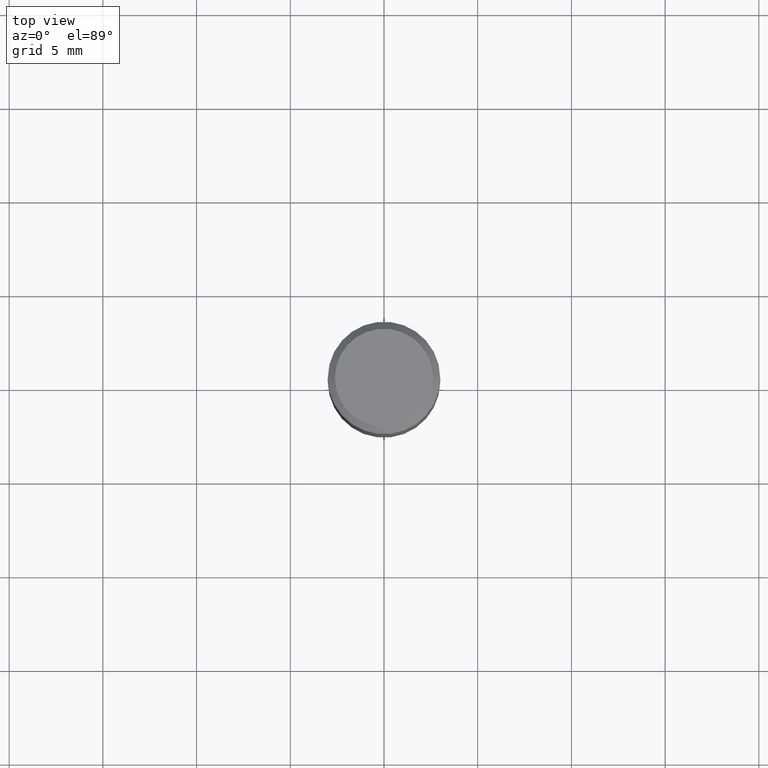
[diagram: clean part render]
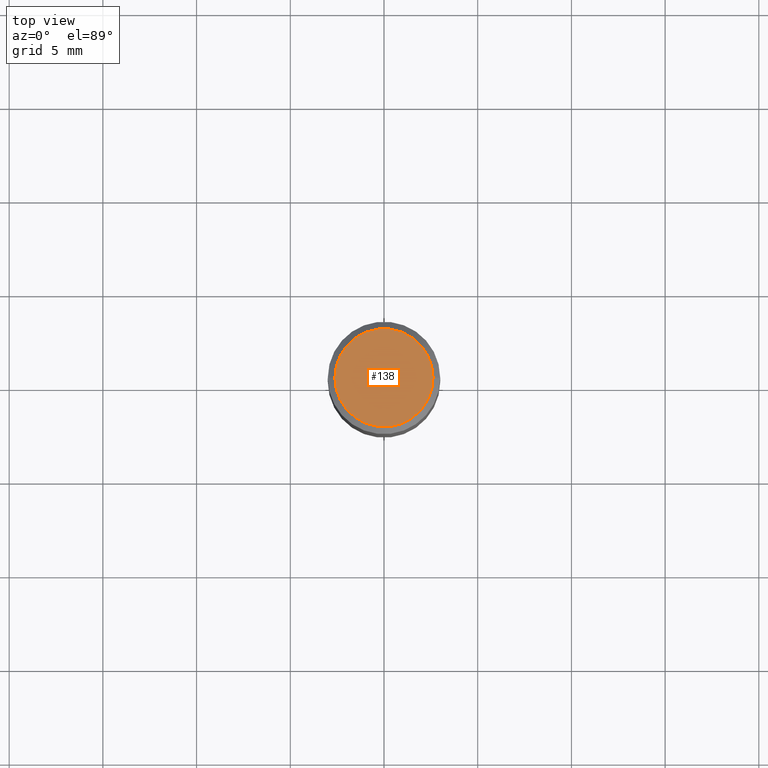
[diagram: same view with one face highlighted and labeled with its STEP entity id]
A machine part, top view. The second image highlights one B-rep face of the part: STEP entity #138.
In plain terms, the highlighted planar face has unit normal (0, -0, -1).
Its self-contained STEP definition (entity closure, byte-faithful):
#24 = DIRECTION ( 'NONE',  ( -2.445468806185136597E-29, 3.491481338843145583E-15, 1.000000000000000000 ) ) ;
#59 = DIRECTION ( 'NONE',  ( 1.000000000000000000, -6.982962677686265922E-15, 4.883331232093008327E-29 ) ) ;
#65 = DIRECTION ( 'NONE',  ( 2.438088387897960049E-29, -3.491481338843145188E-15, -1.000000000000000000 ) ) ;
#69 = ORIENTED_EDGE ( 'NONE', *, *, #222, .T. ) ;
#86 = CIRCLE ( 'NONE', #340, 0.1031000000000000111 ) ;
#99 = CIRCLE ( 'NONE', #129, 0.1031000000000000111 ) ;
#100 = PLANE ( 'NONE',  #233 ) ;
#101 = VERTEX_POINT ( 'NONE', #214 ) ;
#129 = AXIS2_PLACEMENT_3D ( 'NONE', #130, #352, #434 ) ;
#130 = CARTESIAN_POINT ( 'NONE',  ( -3.565051472193348194E-45, 5.089948665751259239E-31, 1.457819238248526181E-16 ) ) ;
#138 = ADVANCED_FACE ( 'NONE', ( #421 ), #100, .F. ) ;
#197 = CARTESIAN_POINT ( 'NONE',  ( -3.565051472193348194E-45, 5.089948665751259239E-31, 1.457819238248526181E-16 ) ) ;
#207 = DIRECTION ( 'NONE',  ( -1.000000000000000000, 6.982962677686265922E-15, -4.876176775795935793E-29 ) ) ;
#214 = CARTESIAN_POINT ( 'NONE',  ( -0.1031000000000000111, 7.461295621107778410E-16, 1.457819238248475152E-16 ) ) ;
#222 = EDGE_CURVE ( 'NONE', #101, #457, #86, .T. ) ;
#233 = AXIS2_PLACEMENT_3D ( 'NONE', #243, #65, #207 ) ;
#243 = CARTESIAN_POINT ( 'NONE',  ( 7.199434520694541042E-16, 0.1031000000000000111, -2.870807641223019510E-16 ) ) ;
#244 = ORIENTED_EDGE ( 'NONE', *, *, #401, .T. ) ;
#249 = EDGE_LOOP ( 'NONE', ( #69, #244 ) ) ;
#340 = AXIS2_PLACEMENT_3D ( 'NONE', #197, #24, #59 ) ;
#352 = DIRECTION ( 'NONE',  ( -2.445468806185136597E-29, 3.491481338843145583E-15, 1.000000000000000000 ) ) ;
#368 = CARTESIAN_POINT ( 'NONE',  ( 0.1031000000000000111, -7.849571885948547775E-16, 1.457819238248578690E-16 ) ) ;
#401 = EDGE_CURVE ( 'NONE', #457, #101, #99, .T. ) ;
#421 = FACE_OUTER_BOUND ( 'NONE', #249, .T. ) ;
#434 = DIRECTION ( 'NONE',  ( 1.000000000000000000, -6.982962677686265922E-15, 4.883331232093008327E-29 ) ) ;
#457 = VERTEX_POINT ( 'NONE', #368 ) ;